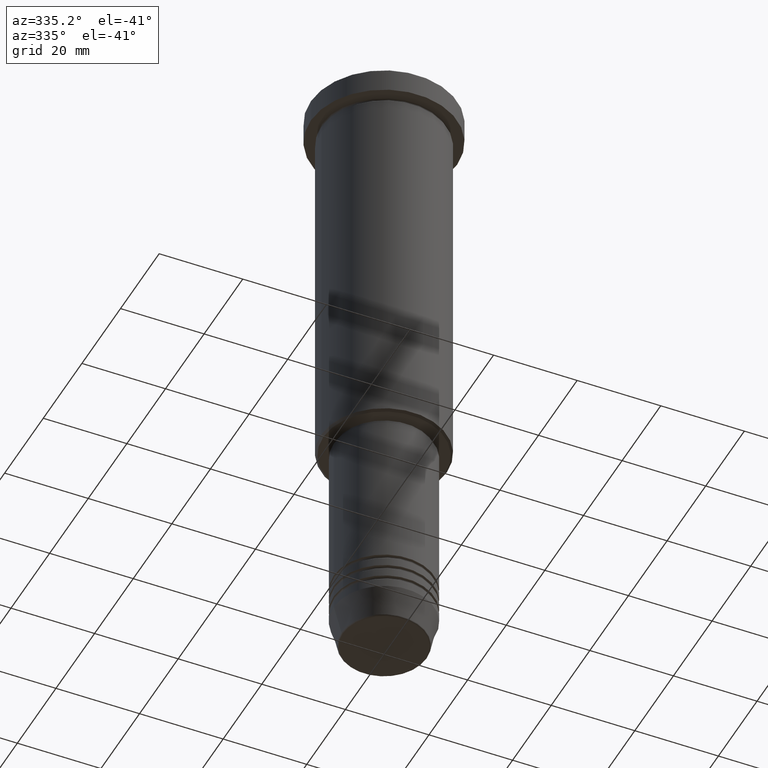
[diagram: clean part render]
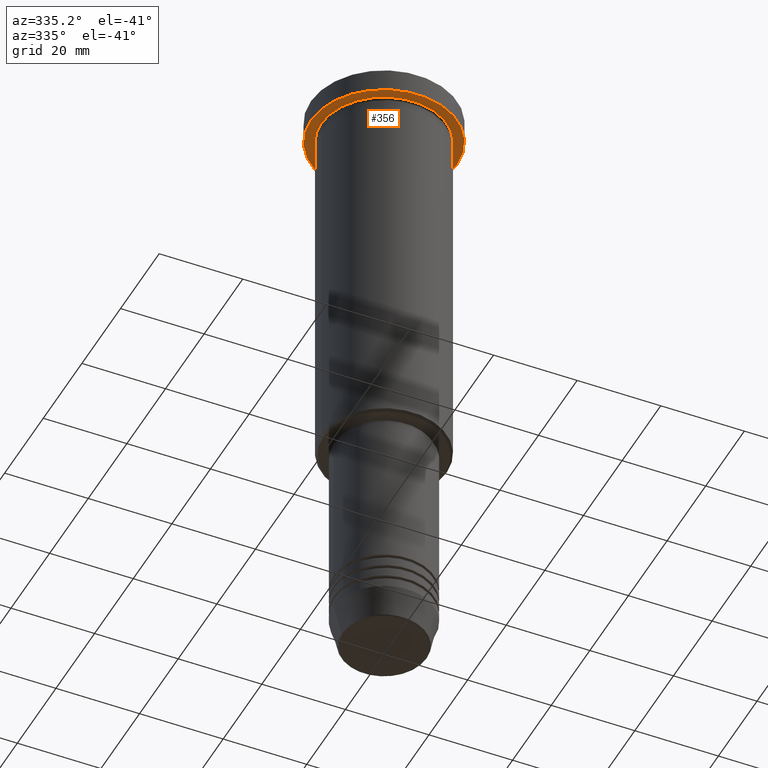
[diagram: same view with one face highlighted and labeled with its STEP entity id]
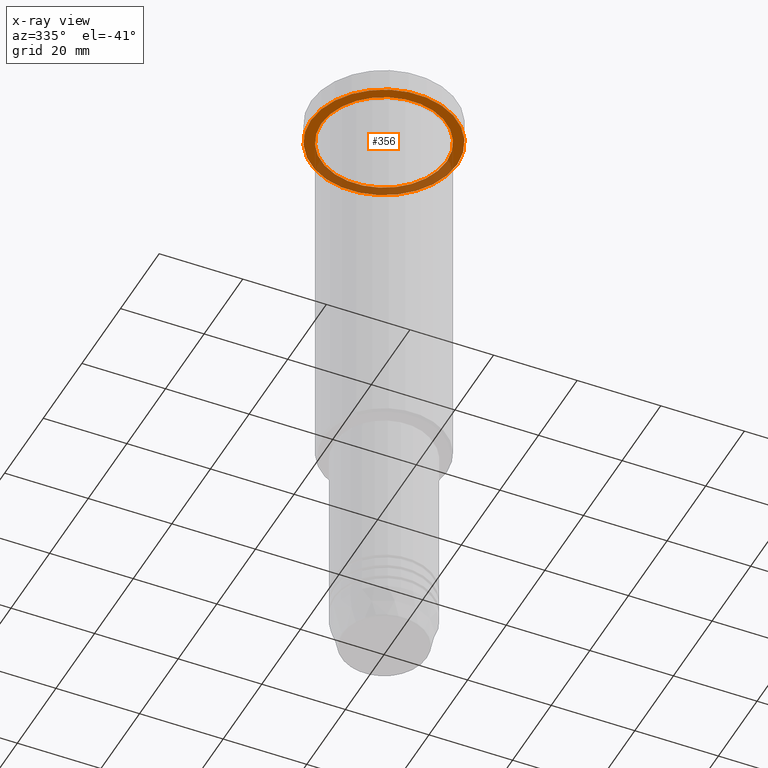
[diagram: x-ray of the same camera — body ghosted, the highlighted face saturated]
A machine part, auxiliary view. The second image highlights one B-rep face of the part: STEP entity #356.
The next image is the same camera in x-ray: the body ghosted, the highlighted face saturated — about 35% of this face is hidden behind the body in this view.
In plain terms, the highlighted planar face has unit normal (0, 0, -1).
Its self-contained STEP definition (entity closure, byte-faithful):
#3 = AXIS2_PLACEMENT_3D ( 'NONE', #742, #733, #283 ) ;
#46 = ORIENTED_EDGE ( 'NONE', *, *, #392, .T. ) ;
#89 = EDGE_CURVE ( 'NONE', #1029, #715, #244, .T. ) ;
#244 = CIRCLE ( 'NONE', #3, 15.00000000000000000 ) ;
#255 = DIRECTION ( 'NONE',  ( 0.000000000000000000, 0.000000000000000000, -1.000000000000000000 ) ) ;
#283 = DIRECTION ( 'NONE',  ( -1.000000000000000000, 0.000000000000000000, 0.000000000000000000 ) ) ;
#328 = DIRECTION ( 'NONE',  ( 1.000000000000000000, 0.000000000000000000, 0.000000000000000000 ) ) ;
#333 = PLANE ( 'NONE',  #1095 ) ;
#356 = ADVANCED_FACE ( 'NONE', ( #1134, #784 ), #333, .T. ) ;
#378 = AXIS2_PLACEMENT_3D ( 'NONE', #1061, #621, #526 ) ;
#392 = EDGE_CURVE ( 'NONE', #715, #1029, #484, .T. ) ;
#398 = AXIS2_PLACEMENT_3D ( 'NONE', #679, #399, #948 ) ;
#399 = DIRECTION ( 'NONE',  ( -0.000000000000000000, -0.000000000000000000, 1.000000000000000000 ) ) ;
#440 = AXIS2_PLACEMENT_3D ( 'NONE', #797, #874, #328 ) ;
#479 = ORIENTED_EDGE ( 'NONE', *, *, #1011, .F. ) ;
#484 = CIRCLE ( 'NONE', #378, 15.00000000000000000 ) ;
#506 = ORIENTED_EDGE ( 'NONE', *, *, #1116, .F. ) ;
#526 = DIRECTION ( 'NONE',  ( -1.000000000000000000, 0.000000000000000000, 0.000000000000000000 ) ) ;
#608 = CARTESIAN_POINT ( 'NONE',  ( -17.50000000000000000, 2.143131898507868248E-15, -5.999999999999995559 ) ) ;
#613 = VERTEX_POINT ( 'NONE', #977 ) ;
#621 = DIRECTION ( 'NONE',  ( -0.000000000000000000, -0.000000000000000000, 1.000000000000000000 ) ) ;
#623 = CARTESIAN_POINT ( 'NONE',  ( 15.00000000000000000, 1.836970198721029589E-15, -5.999999999999994671 ) ) ;
#679 = CARTESIAN_POINT ( 'NONE',  ( 0.000000000000000000, 0.000000000000000000, -5.999999999999995559 ) ) ;
#698 = EDGE_LOOP ( 'NONE', ( #479, #506 ) ) ;
#715 = VERTEX_POINT ( 'NONE', #623 ) ;
#733 = DIRECTION ( 'NONE',  ( -0.000000000000000000, -0.000000000000000000, 1.000000000000000000 ) ) ;
#742 = CARTESIAN_POINT ( 'NONE',  ( 0.000000000000000000, 0.000000000000000000, -5.999999999999995559 ) ) ;
#768 = DIRECTION ( 'NONE',  ( -1.000000000000000000, 0.000000000000000000, -0.000000000000000000 ) ) ;
#784 = FACE_OUTER_BOUND ( 'NONE', #698, .T. ) ;
#797 = CARTESIAN_POINT ( 'NONE',  ( 0.000000000000000000, 0.000000000000000000, -5.999999999999995559 ) ) ;
#834 = CIRCLE ( 'NONE', #398, 17.50000000000000000 ) ;
#874 = DIRECTION ( 'NONE',  ( -0.000000000000000000, -0.000000000000000000, 1.000000000000000000 ) ) ;
#934 = CARTESIAN_POINT ( 'NONE',  ( -15.00000000000000000, 0.000000000000000000, -5.999999999999994671 ) ) ;
#948 = DIRECTION ( 'NONE',  ( 1.000000000000000000, 0.000000000000000000, 0.000000000000000000 ) ) ;
#970 = CARTESIAN_POINT ( 'NONE',  ( 0.000000000000000000, 17.50000000000000000, -5.999999999999995559 ) ) ;
#977 = CARTESIAN_POINT ( 'NONE',  ( 17.50000000000000000, 0.000000000000000000, -5.999999999999995559 ) ) ;
#1011 = EDGE_CURVE ( 'NONE', #613, #1118, #834, .T. ) ;
#1029 = VERTEX_POINT ( 'NONE', #934 ) ;
#1058 = EDGE_LOOP ( 'NONE', ( #1124, #46 ) ) ;
#1061 = CARTESIAN_POINT ( 'NONE',  ( 0.000000000000000000, 0.000000000000000000, -5.999999999999995559 ) ) ;
#1095 = AXIS2_PLACEMENT_3D ( 'NONE', #970, #255, #768 ) ;
#1116 = EDGE_CURVE ( 'NONE', #1118, #613, #1132, .T. ) ;
#1118 = VERTEX_POINT ( 'NONE', #608 ) ;
#1124 = ORIENTED_EDGE ( 'NONE', *, *, #89, .T. ) ;
#1132 = CIRCLE ( 'NONE', #440, 17.50000000000000000 ) ;
#1134 = FACE_BOUND ( 'NONE', #1058, .T. ) ;